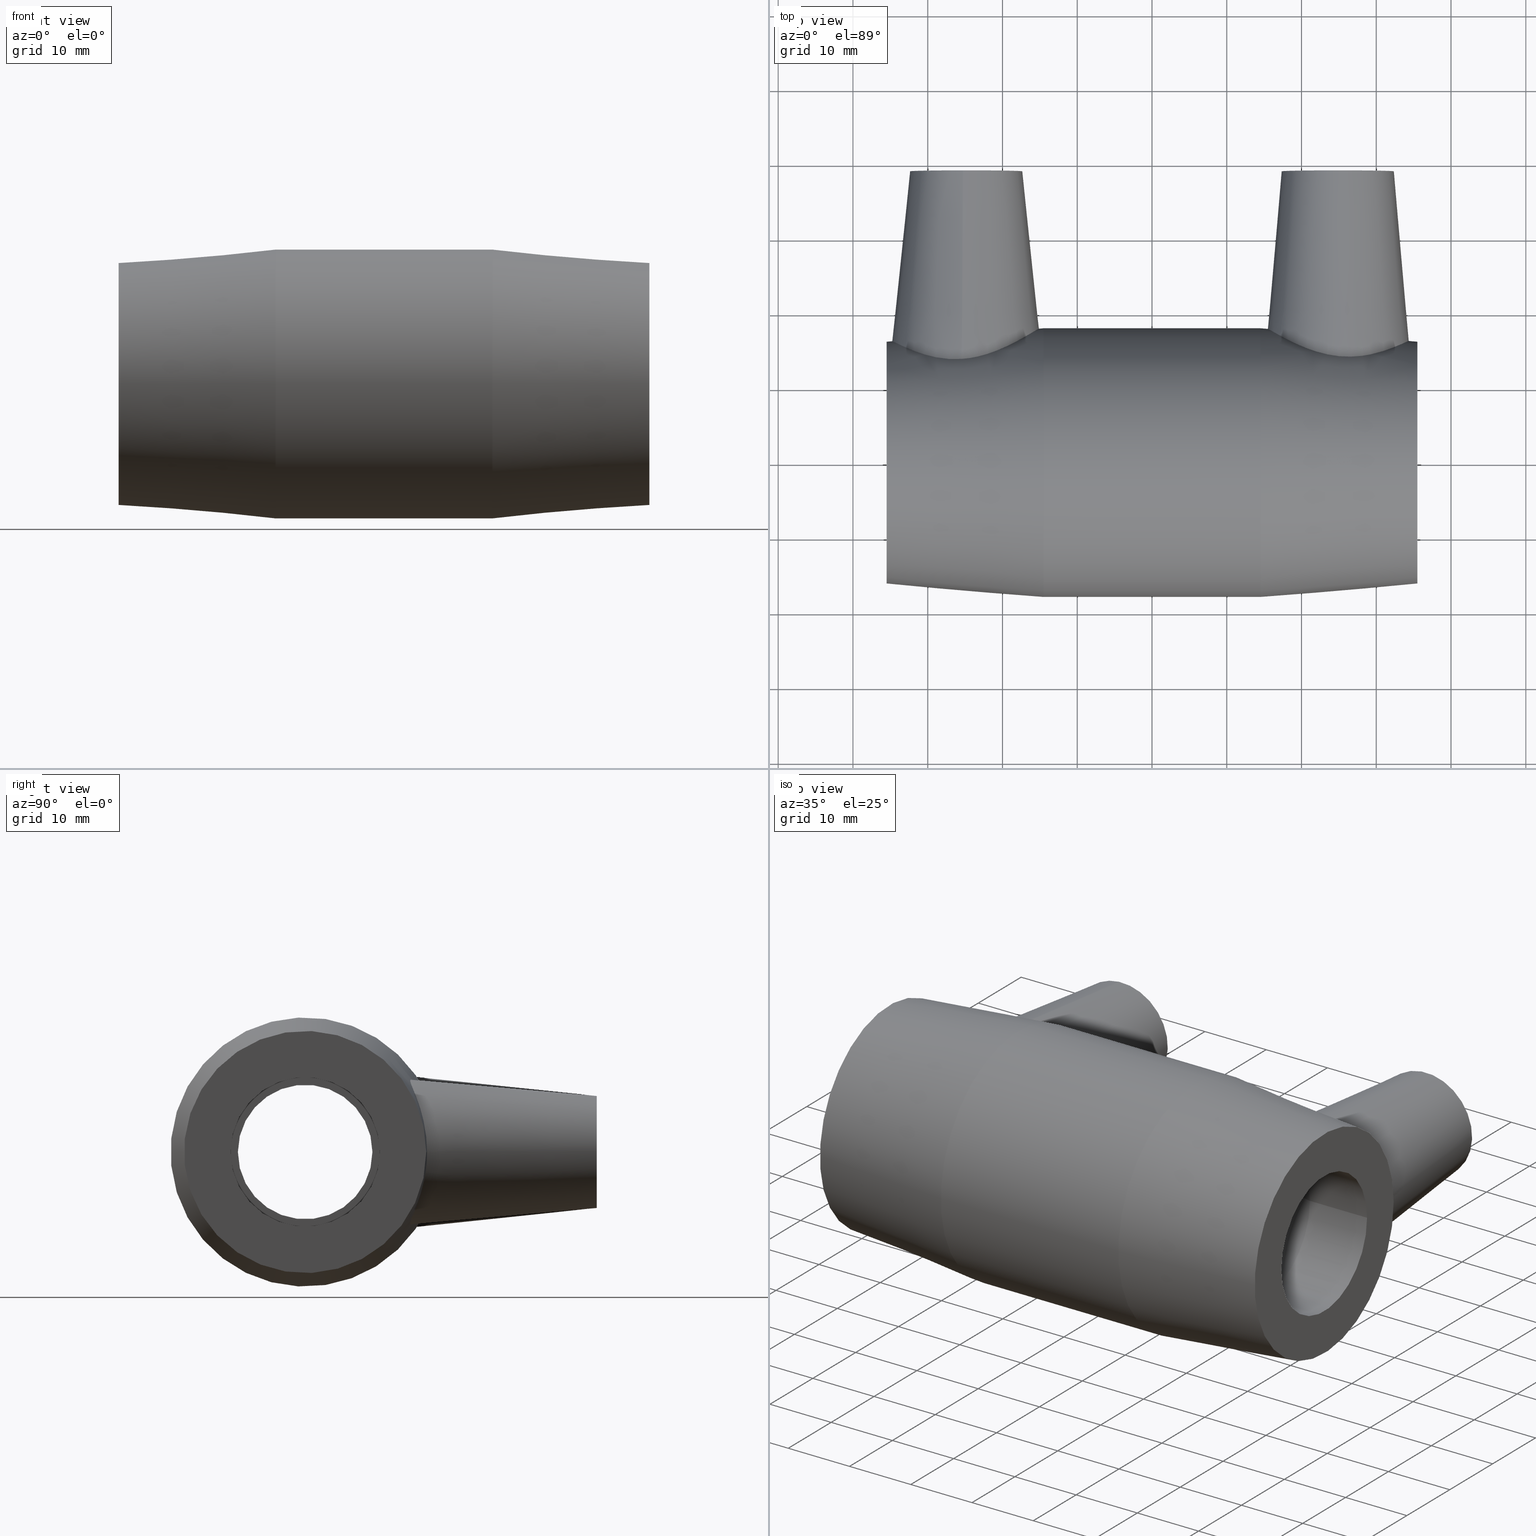
[diagram: canonical four-view strip — front | top / right | iso, engineering-drawing reading convention]
A machine part, canonical four-view strip (front | top / right | iso — engineering-drawing reading convention). The complete STEP part file that produces these views, byte-faithful:
ISO-10303-21;
HEADER;
/* Generated by software containing ST-Developer
 * from STEP Tools, Inc. (www.steptools.com) 
 */

FILE_DESCRIPTION(
/* description */ ('PLASSON REDUCING COUPLER 25-20'),
/* implementation_level */ '2;1');

FILE_NAME(
/* name */ 
'C:\\Dropbox\\KIMPROJECTS-Inventor\\99-16-3568-Processing\\ElectroFusi
on Fittings\\491104\\491104025020.ipt.stp',
/* time_stamp */ '2017-11-06T09:12:26+02:00',
/* author */ ('KIM'),
/* organization */ (''),
/* preprocessor_version */ 'ST-DEVELOPER v15.6',
/* originating_system */ 'Autodesk Inventor 2015',
/* authorisation */ '');

FILE_SCHEMA (('AUTOMOTIVE_DESIGN { 1 0 10303 214 3 1 1 }'));
ENDSEC;

DATA;
#10=MECHANICAL_DESIGN_GEOMETRIC_PRESENTATION_REPRESENTATION('',(#13),#651);
#11=SHAPE_REPRESENTATION_RELATIONSHIP('SRR','None',#660,#12);
#12=ADVANCED_BREP_SHAPE_REPRESENTATION($,(#14),#650);
#13=STYLED_ITEM('',(#669),#14);
#14=MANIFOLD_SOLID_BREP('Solid1',#323);
#15=B_SPLINE_CURVE_WITH_KNOTS('',3,(#510,#511,#512,#513,#514,#515,#516,
#517,#518,#519,#520,#521,#522,#523,#524,#525,#526,#527,#528,#529,#530,#531,
#532,#533,#534,#535,#536,#537,#538,#539,#540,#541,#542,#543,#544,#545,#546,
#547),.UNSPECIFIED.,.T.,.F.,(4,2,2,2,2,2,2,2,2,2,2,2,2,2,2,2,2,2,4),(0.,
0.176861838279988,0.353723676559975,0.70744735311995,1.0635954870431,1.41974362096625,
1.7758917548894,2.13203988881255,2.48576356537253,2.66262540365251,2.8394872419325,
3.23294618645652,3.62640513098054,4.00458566111133,4.38276619124212,4.7609467213729,
5.13912725150369,5.53258619602771,5.92604514055173),.UNSPECIFIED.);
#16=B_SPLINE_CURVE_WITH_KNOTS('',3,(#562,#563,#564,#565,#566,#567,#568,
#569,#570,#571,#572,#573,#574,#575,#576,#577,#578,#579,#580,#581,#582,#583,
#584,#585,#586,#587,#588,#589,#590,#591,#592,#593,#594,#595,#596,#597,#598,
#599),.UNSPECIFIED.,.T.,.F.,(4,2,2,2,2,2,2,2,2,2,2,2,2,2,2,2,2,2,4),(0.,
0.185299201020155,0.370598402040309,0.741196804080619,1.11369570266722,
1.48619460125382,1.85869349984042,2.23119239842702,2.60179080046733,2.78709000148748,
2.97238920250763,3.3877355594393,3.80308191637097,4.19848920143802,4.59389648650506,
4.98930377157211,5.38471105663916,5.80005741357083,6.2154037705025),
 .UNSPECIFIED.);
#17=CONICAL_SURFACE('',#337,7.5,5.);
#18=CONICAL_SURFACE('',#346,7.5,6.);
#19=CONICAL_SURFACE('',#350,17.1,4.89909245378776);
#20=CONICAL_SURFACE('',#356,10.4959653105634,12.);
#21=CONICAL_SURFACE('',#372,10.4959653105634,12.);
#22=CONICAL_SURFACE('',#378,17.1,4.89909245378775);
#23=FACE_BOUND('',#92,.T.);
#24=FACE_BOUND('',#94,.T.);
#25=FACE_BOUND('',#96,.T.);
#26=FACE_BOUND('',#98,.T.);
#27=FACE_BOUND('',#100,.T.);
#28=FACE_BOUND('',#102,.T.);
#29=FACE_BOUND('',#104,.T.);
#30=FACE_BOUND('',#106,.T.);
#31=FACE_BOUND('',#108,.T.);
#32=FACE_BOUND('',#110,.T.);
#33=FACE_BOUND('',#112,.T.);
#34=FACE_BOUND('',#114,.T.);
#35=FACE_BOUND('',#115,.T.);
#36=FACE_BOUND('',#117,.T.);
#37=FACE_BOUND('',#119,.T.);
#38=FACE_BOUND('',#121,.T.);
#39=FACE_BOUND('',#123,.T.);
#40=FACE_BOUND('',#125,.T.);
#41=FACE_BOUND('',#127,.T.);
#42=FACE_BOUND('',#129,.T.);
#43=FACE_BOUND('',#131,.T.);
#44=FACE_BOUND('',#133,.T.);
#45=FACE_BOUND('',#135,.T.);
#46=FACE_BOUND('',#137,.T.);
#47=FACE_BOUND('',#139,.T.);
#48=FACE_BOUND('',#141,.T.);
#49=FACE_BOUND('',#143,.T.);
#50=FACE_BOUND('',#144,.T.);
#51=CYLINDRICAL_SURFACE('',#329,2.);
#52=CYLINDRICAL_SURFACE('',#331,5.);
#53=CYLINDRICAL_SURFACE('',#338,2.);
#54=CYLINDRICAL_SURFACE('',#340,5.);
#55=CYLINDRICAL_SURFACE('',#347,18.);
#56=CYLINDRICAL_SURFACE('',#354,9.99999999999999);
#57=CYLINDRICAL_SURFACE('',#360,9.99999999999999);
#58=CYLINDRICAL_SURFACE('',#364,8.99999999999999);
#59=CYLINDRICAL_SURFACE('',#368,10.);
#60=CYLINDRICAL_SURFACE('',#374,10.);
#61=FACE_OUTER_BOUND('',#89,.T.);
#62=FACE_OUTER_BOUND('',#90,.T.);
#63=FACE_OUTER_BOUND('',#91,.T.);
#64=FACE_OUTER_BOUND('',#93,.T.);
#65=FACE_OUTER_BOUND('',#95,.T.);
#66=FACE_OUTER_BOUND('',#97,.T.);
#67=FACE_OUTER_BOUND('',#99,.T.);
#68=FACE_OUTER_BOUND('',#101,.T.);
#69=FACE_OUTER_BOUND('',#103,.T.);
#70=FACE_OUTER_BOUND('',#105,.T.);
#71=FACE_OUTER_BOUND('',#107,.T.);
#72=FACE_OUTER_BOUND('',#109,.T.);
#73=FACE_OUTER_BOUND('',#111,.T.);
#74=FACE_OUTER_BOUND('',#113,.T.);
#75=FACE_OUTER_BOUND('',#116,.T.);
#76=FACE_OUTER_BOUND('',#118,.T.);
#77=FACE_OUTER_BOUND('',#120,.T.);
#78=FACE_OUTER_BOUND('',#122,.T.);
#79=FACE_OUTER_BOUND('',#124,.T.);
#80=FACE_OUTER_BOUND('',#126,.T.);
#81=FACE_OUTER_BOUND('',#128,.T.);
#82=FACE_OUTER_BOUND('',#130,.T.);
#83=FACE_OUTER_BOUND('',#132,.T.);
#84=FACE_OUTER_BOUND('',#134,.T.);
#85=FACE_OUTER_BOUND('',#136,.T.);
#86=FACE_OUTER_BOUND('',#138,.T.);
#87=FACE_OUTER_BOUND('',#140,.T.);
#88=FACE_OUTER_BOUND('',#142,.T.);
#89=EDGE_LOOP('',(#227));
#90=EDGE_LOOP('',(#228));
#91=EDGE_LOOP('',(#229));
#92=EDGE_LOOP('',(#230));
#93=EDGE_LOOP('',(#231));
#94=EDGE_LOOP('',(#232));
#95=EDGE_LOOP('',(#233));
#96=EDGE_LOOP('',(#234));
#97=EDGE_LOOP('',(#235));
#98=EDGE_LOOP('',(#236));
#99=EDGE_LOOP('',(#237));
#100=EDGE_LOOP('',(#238));
#101=EDGE_LOOP('',(#239));
#102=EDGE_LOOP('',(#240));
#103=EDGE_LOOP('',(#241));
#104=EDGE_LOOP('',(#242));
#105=EDGE_LOOP('',(#243));
#106=EDGE_LOOP('',(#244));
#107=EDGE_LOOP('',(#245));
#108=EDGE_LOOP('',(#246));
#109=EDGE_LOOP('',(#247));
#110=EDGE_LOOP('',(#248));
#111=EDGE_LOOP('',(#249));
#112=EDGE_LOOP('',(#250));
#113=EDGE_LOOP('',(#251));
#114=EDGE_LOOP('',(#252));
#115=EDGE_LOOP('',(#253));
#116=EDGE_LOOP('',(#254));
#117=EDGE_LOOP('',(#255));
#118=EDGE_LOOP('',(#256));
#119=EDGE_LOOP('',(#257));
#120=EDGE_LOOP('',(#258));
#121=EDGE_LOOP('',(#259));
#122=EDGE_LOOP('',(#260));
#123=EDGE_LOOP('',(#261));
#124=EDGE_LOOP('',(#262));
#125=EDGE_LOOP('',(#263));
#126=EDGE_LOOP('',(#264));
#127=EDGE_LOOP('',(#265));
#128=EDGE_LOOP('',(#266));
#129=EDGE_LOOP('',(#267));
#130=EDGE_LOOP('',(#268));
#131=EDGE_LOOP('',(#269));
#132=EDGE_LOOP('',(#270));
#133=EDGE_LOOP('',(#271));
#134=EDGE_LOOP('',(#272));
#135=EDGE_LOOP('',(#273));
#136=EDGE_LOOP('',(#274));
#137=EDGE_LOOP('',(#275));
#138=EDGE_LOOP('',(#276));
#139=EDGE_LOOP('',(#277));
#140=EDGE_LOOP('',(#278));
#141=EDGE_LOOP('',(#279));
#142=EDGE_LOOP('',(#280));
#143=EDGE_LOOP('',(#281));
#144=EDGE_LOOP('',(#282));
#145=CIRCLE('',#326,2.);
#146=CIRCLE('',#328,2.);
#147=CIRCLE('',#330,2.);
#148=CIRCLE('',#332,5.);
#149=CIRCLE('',#333,5.);
#150=CIRCLE('',#336,7.5);
#151=CIRCLE('',#339,2.);
#152=CIRCLE('',#341,5.);
#153=CIRCLE('',#342,5.);
#154=CIRCLE('',#345,7.5);
#155=CIRCLE('',#348,18.);
#156=CIRCLE('',#349,18.);
#157=CIRCLE('',#351,16.2);
#158=CIRCLE('',#353,9.99999999999999);
#159=CIRCLE('',#355,9.99999999999999);
#160=CIRCLE('',#357,10.9919306211268);
#161=CIRCLE('',#359,9.99999999999999);
#162=CIRCLE('',#361,9.99999999999999);
#163=CIRCLE('',#363,8.99999999999999);
#164=CIRCLE('',#365,8.99999999999999);
#165=CIRCLE('',#367,9.99999999999999);
#166=CIRCLE('',#369,10.);
#167=CIRCLE('',#371,10.9919306211268);
#168=CIRCLE('',#373,10.);
#169=CIRCLE('',#375,10.);
#170=CIRCLE('',#377,16.2);
#171=VERTEX_POINT('',#491);
#172=VERTEX_POINT('',#494);
#173=VERTEX_POINT('',#497);
#174=VERTEX_POINT('',#500);
#175=VERTEX_POINT('',#502);
#176=VERTEX_POINT('',#506);
#177=VERTEX_POINT('',#509);
#178=VERTEX_POINT('',#549);
#179=VERTEX_POINT('',#552);
#180=VERTEX_POINT('',#554);
#181=VERTEX_POINT('',#558);
#182=VERTEX_POINT('',#561);
#183=VERTEX_POINT('',#601);
#184=VERTEX_POINT('',#603);
#185=VERTEX_POINT('',#606);
#186=VERTEX_POINT('',#609);
#187=VERTEX_POINT('',#612);
#188=VERTEX_POINT('',#615);
#189=VERTEX_POINT('',#618);
#190=VERTEX_POINT('',#621);
#191=VERTEX_POINT('',#624);
#192=VERTEX_POINT('',#627);
#193=VERTEX_POINT('',#630);
#194=VERTEX_POINT('',#633);
#195=VERTEX_POINT('',#636);
#196=VERTEX_POINT('',#639);
#197=VERTEX_POINT('',#642);
#198=VERTEX_POINT('',#645);
#199=EDGE_CURVE('',#171,#171,#145,.T.);
#200=EDGE_CURVE('',#172,#172,#146,.T.);
#201=EDGE_CURVE('',#173,#173,#147,.T.);
#202=EDGE_CURVE('',#174,#174,#148,.T.);
#203=EDGE_CURVE('',#175,#175,#149,.T.);
#204=EDGE_CURVE('',#176,#176,#150,.T.);
#205=EDGE_CURVE('',#177,#177,#15,.T.);
#206=EDGE_CURVE('',#178,#178,#151,.T.);
#207=EDGE_CURVE('',#179,#179,#152,.T.);
#208=EDGE_CURVE('',#180,#180,#153,.T.);
#209=EDGE_CURVE('',#181,#181,#154,.T.);
#210=EDGE_CURVE('',#182,#182,#16,.T.);
#211=EDGE_CURVE('',#183,#183,#155,.T.);
#212=EDGE_CURVE('',#184,#184,#156,.T.);
#213=EDGE_CURVE('',#185,#185,#157,.T.);
#214=EDGE_CURVE('',#186,#186,#158,.T.);
#215=EDGE_CURVE('',#187,#187,#159,.T.);
#216=EDGE_CURVE('',#188,#188,#160,.T.);
#217=EDGE_CURVE('',#189,#189,#161,.T.);
#218=EDGE_CURVE('',#190,#190,#162,.T.);
#219=EDGE_CURVE('',#191,#191,#163,.T.);
#220=EDGE_CURVE('',#192,#192,#164,.T.);
#221=EDGE_CURVE('',#193,#193,#165,.T.);
#222=EDGE_CURVE('',#194,#194,#166,.T.);
#223=EDGE_CURVE('',#195,#195,#167,.T.);
#224=EDGE_CURVE('',#196,#196,#168,.T.);
#225=EDGE_CURVE('',#197,#197,#169,.T.);
#226=EDGE_CURVE('',#198,#198,#170,.T.);
#227=ORIENTED_EDGE('',*,*,#199,.F.);
#228=ORIENTED_EDGE('',*,*,#200,.F.);
#229=ORIENTED_EDGE('',*,*,#199,.T.);
#230=ORIENTED_EDGE('',*,*,#201,.T.);
#231=ORIENTED_EDGE('',*,*,#202,.T.);
#232=ORIENTED_EDGE('',*,*,#203,.F.);
#233=ORIENTED_EDGE('',*,*,#202,.F.);
#234=ORIENTED_EDGE('',*,*,#201,.F.);
#235=ORIENTED_EDGE('',*,*,#204,.F.);
#236=ORIENTED_EDGE('',*,*,#203,.T.);
#237=ORIENTED_EDGE('',*,*,#204,.T.);
#238=ORIENTED_EDGE('',*,*,#205,.F.);
#239=ORIENTED_EDGE('',*,*,#200,.T.);
#240=ORIENTED_EDGE('',*,*,#206,.T.);
#241=ORIENTED_EDGE('',*,*,#207,.T.);
#242=ORIENTED_EDGE('',*,*,#208,.F.);
#243=ORIENTED_EDGE('',*,*,#207,.F.);
#244=ORIENTED_EDGE('',*,*,#206,.F.);
#245=ORIENTED_EDGE('',*,*,#209,.F.);
#246=ORIENTED_EDGE('',*,*,#208,.T.);
#247=ORIENTED_EDGE('',*,*,#209,.T.);
#248=ORIENTED_EDGE('',*,*,#210,.F.);
#249=ORIENTED_EDGE('',*,*,#211,.T.);
#250=ORIENTED_EDGE('',*,*,#212,.F.);
#251=ORIENTED_EDGE('',*,*,#213,.F.);
#252=ORIENTED_EDGE('',*,*,#205,.T.);
#253=ORIENTED_EDGE('',*,*,#212,.T.);
#254=ORIENTED_EDGE('',*,*,#213,.T.);
#255=ORIENTED_EDGE('',*,*,#214,.F.);
#256=ORIENTED_EDGE('',*,*,#215,.F.);
#257=ORIENTED_EDGE('',*,*,#214,.T.);
#258=ORIENTED_EDGE('',*,*,#216,.F.);
#259=ORIENTED_EDGE('',*,*,#215,.T.);
#260=ORIENTED_EDGE('',*,*,#216,.T.);
#261=ORIENTED_EDGE('',*,*,#217,.F.);
#262=ORIENTED_EDGE('',*,*,#217,.T.);
#263=ORIENTED_EDGE('',*,*,#218,.F.);
#264=ORIENTED_EDGE('',*,*,#218,.T.);
#265=ORIENTED_EDGE('',*,*,#219,.F.);
#266=ORIENTED_EDGE('',*,*,#220,.F.);
#267=ORIENTED_EDGE('',*,*,#219,.T.);
#268=ORIENTED_EDGE('',*,*,#221,.F.);
#269=ORIENTED_EDGE('',*,*,#220,.T.);
#270=ORIENTED_EDGE('',*,*,#222,.F.);
#271=ORIENTED_EDGE('',*,*,#221,.T.);
#272=ORIENTED_EDGE('',*,*,#223,.F.);
#273=ORIENTED_EDGE('',*,*,#222,.T.);
#274=ORIENTED_EDGE('',*,*,#224,.F.);
#275=ORIENTED_EDGE('',*,*,#223,.T.);
#276=ORIENTED_EDGE('',*,*,#225,.F.);
#277=ORIENTED_EDGE('',*,*,#224,.T.);
#278=ORIENTED_EDGE('',*,*,#226,.F.);
#279=ORIENTED_EDGE('',*,*,#225,.T.);
#280=ORIENTED_EDGE('',*,*,#211,.F.);
#281=ORIENTED_EDGE('',*,*,#210,.T.);
#282=ORIENTED_EDGE('',*,*,#226,.T.);
#283=PLANE('',#325);
#284=PLANE('',#327);
#285=PLANE('',#334);
#286=PLANE('',#335);
#287=PLANE('',#343);
#288=PLANE('',#344);
#289=PLANE('',#352);
#290=PLANE('',#358);
#291=PLANE('',#362);
#292=PLANE('',#366);
#293=PLANE('',#370);
#294=PLANE('',#376);
#295=ADVANCED_FACE('',(#61),#283,.T.);
#296=ADVANCED_FACE('',(#62),#284,.T.);
#297=ADVANCED_FACE('',(#63,#23),#51,.T.);
#298=ADVANCED_FACE('',(#64,#24),#52,.F.);
#299=ADVANCED_FACE('',(#65,#25),#285,.T.);
#300=ADVANCED_FACE('',(#66,#26),#286,.T.);
#301=ADVANCED_FACE('',(#67,#27),#17,.T.);
#302=ADVANCED_FACE('',(#68,#28),#53,.T.);
#303=ADVANCED_FACE('',(#69,#29),#54,.F.);
#304=ADVANCED_FACE('',(#70,#30),#287,.T.);
#305=ADVANCED_FACE('',(#71,#31),#288,.T.);
#306=ADVANCED_FACE('',(#72,#32),#18,.T.);
#307=ADVANCED_FACE('',(#73,#33),#55,.T.);
#308=ADVANCED_FACE('',(#74,#34,#35),#19,.T.);
#309=ADVANCED_FACE('',(#75,#36),#289,.T.);
#310=ADVANCED_FACE('',(#76,#37),#56,.F.);
#311=ADVANCED_FACE('',(#77,#38),#20,.F.);
#312=ADVANCED_FACE('',(#78,#39),#290,.T.);
#313=ADVANCED_FACE('',(#79,#40),#57,.F.);
#314=ADVANCED_FACE('',(#80,#41),#291,.T.);
#315=ADVANCED_FACE('',(#81,#42),#58,.F.);
#316=ADVANCED_FACE('',(#82,#43),#292,.T.);
#317=ADVANCED_FACE('',(#83,#44),#59,.F.);
#318=ADVANCED_FACE('',(#84,#45),#293,.T.);
#319=ADVANCED_FACE('',(#85,#46),#21,.F.);
#320=ADVANCED_FACE('',(#86,#47),#60,.F.);
#321=ADVANCED_FACE('',(#87,#48),#294,.T.);
#322=ADVANCED_FACE('',(#88,#49,#50),#22,.T.);
#323=CLOSED_SHELL('',(#295,#296,#297,#298,#299,#300,#301,#302,#303,#304,
#305,#306,#307,#308,#309,#310,#311,#312,#313,#314,#315,#316,#317,#318,#319,
#320,#321,#322));
#324=AXIS2_PLACEMENT_3D('placement',#489,#379,#380);
#325=AXIS2_PLACEMENT_3D('',#490,#381,#382);
#326=AXIS2_PLACEMENT_3D('',#492,#383,#384);
#327=AXIS2_PLACEMENT_3D('',#493,#385,#386);
#328=AXIS2_PLACEMENT_3D('',#495,#387,#388);
#329=AXIS2_PLACEMENT_3D('',#496,#389,#390);
#330=AXIS2_PLACEMENT_3D('',#498,#391,#392);
#331=AXIS2_PLACEMENT_3D('',#499,#393,#394);
#332=AXIS2_PLACEMENT_3D('',#501,#395,#396);
#333=AXIS2_PLACEMENT_3D('',#503,#397,#398);
#334=AXIS2_PLACEMENT_3D('',#504,#399,#400);
#335=AXIS2_PLACEMENT_3D('',#505,#401,#402);
#336=AXIS2_PLACEMENT_3D('',#507,#403,#404);
#337=AXIS2_PLACEMENT_3D('',#508,#405,#406);
#338=AXIS2_PLACEMENT_3D('',#548,#407,#408);
#339=AXIS2_PLACEMENT_3D('',#550,#409,#410);
#340=AXIS2_PLACEMENT_3D('',#551,#411,#412);
#341=AXIS2_PLACEMENT_3D('',#553,#413,#414);
#342=AXIS2_PLACEMENT_3D('',#555,#415,#416);
#343=AXIS2_PLACEMENT_3D('',#556,#417,#418);
#344=AXIS2_PLACEMENT_3D('',#557,#419,#420);
#345=AXIS2_PLACEMENT_3D('',#559,#421,#422);
#346=AXIS2_PLACEMENT_3D('',#560,#423,#424);
#347=AXIS2_PLACEMENT_3D('',#600,#425,#426);
#348=AXIS2_PLACEMENT_3D('',#602,#427,#428);
#349=AXIS2_PLACEMENT_3D('',#604,#429,#430);
#350=AXIS2_PLACEMENT_3D('',#605,#431,#432);
#351=AXIS2_PLACEMENT_3D('',#607,#433,#434);
#352=AXIS2_PLACEMENT_3D('',#608,#435,#436);
#353=AXIS2_PLACEMENT_3D('',#610,#437,#438);
#354=AXIS2_PLACEMENT_3D('',#611,#439,#440);
#355=AXIS2_PLACEMENT_3D('',#613,#441,#442);
#356=AXIS2_PLACEMENT_3D('',#614,#443,#444);
#357=AXIS2_PLACEMENT_3D('',#616,#445,#446);
#358=AXIS2_PLACEMENT_3D('',#617,#447,#448);
#359=AXIS2_PLACEMENT_3D('',#619,#449,#450);
#360=AXIS2_PLACEMENT_3D('',#620,#451,#452);
#361=AXIS2_PLACEMENT_3D('',#622,#453,#454);
#362=AXIS2_PLACEMENT_3D('',#623,#455,#456);
#363=AXIS2_PLACEMENT_3D('',#625,#457,#458);
#364=AXIS2_PLACEMENT_3D('',#626,#459,#460);
#365=AXIS2_PLACEMENT_3D('',#628,#461,#462);
#366=AXIS2_PLACEMENT_3D('',#629,#463,#464);
#367=AXIS2_PLACEMENT_3D('',#631,#465,#466);
#368=AXIS2_PLACEMENT_3D('',#632,#467,#468);
#369=AXIS2_PLACEMENT_3D('',#634,#469,#470);
#370=AXIS2_PLACEMENT_3D('',#635,#471,#472);
#371=AXIS2_PLACEMENT_3D('',#637,#473,#474);
#372=AXIS2_PLACEMENT_3D('',#638,#475,#476);
#373=AXIS2_PLACEMENT_3D('',#640,#477,#478);
#374=AXIS2_PLACEMENT_3D('',#641,#479,#480);
#375=AXIS2_PLACEMENT_3D('',#643,#481,#482);
#376=AXIS2_PLACEMENT_3D('',#644,#483,#484);
#377=AXIS2_PLACEMENT_3D('',#646,#485,#486);
#378=AXIS2_PLACEMENT_3D('',#647,#487,#488);
#379=DIRECTION('axis',(0.,0.,1.));
#380=DIRECTION('refdir',(1.,0.,0.));
#381=DIRECTION('center_axis',(0.,1.,0.));
#382=DIRECTION('ref_axis',(0.,0.,1.));
#383=DIRECTION('center_axis',(0.,-1.,0.));
#384=DIRECTION('ref_axis',(1.,0.,0.));
#385=DIRECTION('center_axis',(0.,1.,0.));
#386=DIRECTION('ref_axis',(0.,0.,1.));
#387=DIRECTION('center_axis',(0.,-1.,0.));
#388=DIRECTION('ref_axis',(-1.,0.,0.));
#389=DIRECTION('center_axis',(0.,-1.,0.));
#390=DIRECTION('ref_axis',(1.,0.,0.));
#391=DIRECTION('center_axis',(0.,1.,0.));
#392=DIRECTION('ref_axis',(1.,0.,0.));
#393=DIRECTION('center_axis',(0.,-1.,0.));
#394=DIRECTION('ref_axis',(1.,0.,0.));
#395=DIRECTION('center_axis',(0.,-1.,0.));
#396=DIRECTION('ref_axis',(1.,0.,0.));
#397=DIRECTION('center_axis',(0.,-1.,0.));
#398=DIRECTION('ref_axis',(1.,0.,0.));
#399=DIRECTION('center_axis',(0.,1.,0.));
#400=DIRECTION('ref_axis',(0.,0.,1.));
#401=DIRECTION('center_axis',(0.,1.,0.));
#402=DIRECTION('ref_axis',(0.,0.,1.));
#403=DIRECTION('center_axis',(0.,-1.,0.));
#404=DIRECTION('ref_axis',(1.,0.,0.));
#405=DIRECTION('center_axis',(0.,-1.,0.));
#406=DIRECTION('ref_axis',(1.,0.,0.));
#407=DIRECTION('center_axis',(0.,-1.,0.));
#408=DIRECTION('ref_axis',(-1.,0.,0.));
#409=DIRECTION('center_axis',(0.,1.,0.));
#410=DIRECTION('ref_axis',(-1.,0.,0.));
#411=DIRECTION('center_axis',(0.,-1.,0.));
#412=DIRECTION('ref_axis',(-1.,0.,0.));
#413=DIRECTION('center_axis',(0.,-1.,0.));
#414=DIRECTION('ref_axis',(-1.,0.,0.));
#415=DIRECTION('center_axis',(0.,-1.,0.));
#416=DIRECTION('ref_axis',(-1.,0.,0.));
#417=DIRECTION('center_axis',(0.,1.,0.));
#418=DIRECTION('ref_axis',(0.,0.,1.));
#419=DIRECTION('center_axis',(0.,1.,0.));
#420=DIRECTION('ref_axis',(0.,0.,1.));
#421=DIRECTION('center_axis',(0.,-1.,0.));
#422=DIRECTION('ref_axis',(1.,0.,0.));
#423=DIRECTION('center_axis',(0.,-1.,0.));
#424=DIRECTION('ref_axis',(1.,0.,0.));
#425=DIRECTION('center_axis',(1.,1.83697019872103E-16,0.));
#426=DIRECTION('ref_axis',(-1.96131485542617E-16,1.,0.));
#427=DIRECTION('center_axis',(1.,1.83697019872103E-16,0.));
#428=DIRECTION('ref_axis',(0.,0.,-1.));
#429=DIRECTION('center_axis',(1.,1.83697019872103E-16,0.));
#430=DIRECTION('ref_axis',(0.,0.,-1.));
#431=DIRECTION('center_axis',(-1.,-1.83697019872103E-16,0.));
#432=DIRECTION('ref_axis',(-1.96131485542618E-16,1.,0.));
#433=DIRECTION('center_axis',(1.,1.83697019872103E-16,0.));
#434=DIRECTION('ref_axis',(0.,0.,-1.));
#435=DIRECTION('center_axis',(1.,1.83697019872103E-16,0.));
#436=DIRECTION('ref_axis',(0.,0.,-1.));
#437=DIRECTION('center_axis',(1.,1.83697019872103E-16,0.));
#438=DIRECTION('ref_axis',(0.,0.,-1.));
#439=DIRECTION('center_axis',(1.,1.83697019872103E-16,0.));
#440=DIRECTION('ref_axis',(-1.96131485542617E-16,1.,0.));
#441=DIRECTION('center_axis',(1.,1.83697019872103E-16,0.));
#442=DIRECTION('ref_axis',(0.,0.,-1.));
#443=DIRECTION('center_axis',(-1.,-1.83697019872103E-16,0.));
#444=DIRECTION('ref_axis',(-1.96131485542618E-16,1.,0.));
#445=DIRECTION('center_axis',(1.,1.83697019872103E-16,0.));
#446=DIRECTION('ref_axis',(0.,0.,-1.));
#447=DIRECTION('center_axis',(1.,1.83697019872103E-16,0.));
#448=DIRECTION('ref_axis',(0.,0.,-1.));
#449=DIRECTION('center_axis',(1.,1.83697019872103E-16,0.));
#450=DIRECTION('ref_axis',(0.,0.,-1.));
#451=DIRECTION('center_axis',(1.,1.83697019872103E-16,0.));
#452=DIRECTION('ref_axis',(-1.96131485542618E-16,1.,0.));
#453=DIRECTION('center_axis',(1.,1.83697019872103E-16,0.));
#454=DIRECTION('ref_axis',(0.,0.,-1.));
#455=DIRECTION('center_axis',(1.,1.83697019872103E-16,0.));
#456=DIRECTION('ref_axis',(0.,0.,-1.));
#457=DIRECTION('center_axis',(1.,1.83697019872103E-16,0.));
#458=DIRECTION('ref_axis',(0.,0.,-1.));
#459=DIRECTION('center_axis',(1.,1.83697019872103E-16,0.));
#460=DIRECTION('ref_axis',(-1.96131485542618E-16,1.,0.));
#461=DIRECTION('center_axis',(1.,1.83697019872103E-16,0.));
#462=DIRECTION('ref_axis',(0.,0.,-1.));
#463=DIRECTION('center_axis',(-1.,-1.83697019872103E-16,0.));
#464=DIRECTION('ref_axis',(0.,0.,1.));
#465=DIRECTION('center_axis',(1.,1.83697019872103E-16,0.));
#466=DIRECTION('ref_axis',(0.,0.,-1.));
#467=DIRECTION('center_axis',(1.,1.83697019872103E-16,0.));
#468=DIRECTION('ref_axis',(-1.96131485542617E-16,1.,0.));
#469=DIRECTION('center_axis',(1.,1.83697019872103E-16,0.));
#470=DIRECTION('ref_axis',(0.,0.,-1.));
#471=DIRECTION('center_axis',(-1.,-1.83697019872103E-16,0.));
#472=DIRECTION('ref_axis',(0.,0.,1.));
#473=DIRECTION('center_axis',(1.,1.83697019872103E-16,0.));
#474=DIRECTION('ref_axis',(0.,0.,-1.));
#475=DIRECTION('center_axis',(1.,1.83697019872103E-16,0.));
#476=DIRECTION('ref_axis',(-1.96131485542617E-16,1.,0.));
#477=DIRECTION('center_axis',(1.,1.83697019872103E-16,0.));
#478=DIRECTION('ref_axis',(0.,0.,-1.));
#479=DIRECTION('center_axis',(1.,1.83697019872103E-16,0.));
#480=DIRECTION('ref_axis',(-1.96131485542617E-16,1.,0.));
#481=DIRECTION('center_axis',(1.,1.83697019872103E-16,0.));
#482=DIRECTION('ref_axis',(0.,0.,-1.));
#483=DIRECTION('center_axis',(-1.,-1.83697019872103E-16,0.));
#484=DIRECTION('ref_axis',(0.,0.,1.));
#485=DIRECTION('center_axis',(1.,1.83697019872103E-16,0.));
#486=DIRECTION('ref_axis',(0.,0.,-1.));
#487=DIRECTION('center_axis',(1.,1.83697019872103E-16,0.));
#488=DIRECTION('ref_axis',(-1.96131485542617E-16,1.,0.));
#489=CARTESIAN_POINT('',(0.,0.,0.));
#490=CARTESIAN_POINT('Origin',(24.85,36.,0.));
#491=CARTESIAN_POINT('',(26.85,36.,-2.44929359829471E-16));
#492=CARTESIAN_POINT('Origin',(24.85,36.,0.));
#493=CARTESIAN_POINT('Origin',(-24.85,36.,0.));
#494=CARTESIAN_POINT('',(-22.85,36.,-2.44929359829471E-16));
#495=CARTESIAN_POINT('Origin',(-24.85,36.,0.));
#496=CARTESIAN_POINT('Origin',(24.85,39.,0.));
#497=CARTESIAN_POINT('',(22.85,25.,2.44929359829471E-16));
#498=CARTESIAN_POINT('Origin',(24.85,25.,0.));
#499=CARTESIAN_POINT('Origin',(24.85,39.,0.));
#500=CARTESIAN_POINT('',(19.85,25.,6.12323399573677E-16));
#501=CARTESIAN_POINT('Origin',(24.85,25.,0.));
#502=CARTESIAN_POINT('',(19.85,39.,6.12323399573677E-16));
#503=CARTESIAN_POINT('Origin',(24.85,39.,0.));
#504=CARTESIAN_POINT('Origin',(24.85,25.,9.25185853854297E-17));
#505=CARTESIAN_POINT('Origin',(24.85,39.,1.2335811384724E-16));
#506=CARTESIAN_POINT('',(17.35,39.,9.18485099360515E-16));
#507=CARTESIAN_POINT('Origin',(24.85,39.,0.));
#508=CARTESIAN_POINT('Origin',(24.85,39.,0.));
#509=CARTESIAN_POINT('',(25.3791488612377,14.0658836952062,-9.66698113265337));
#510=CARTESIAN_POINT('Ctrl Pts',(25.3791488612377,14.0658836952062,-9.66698113265337));
#511=CARTESIAN_POINT('Ctrl Pts',(25.9665345276165,14.0243908107581,-9.63846455027638));
#512=CARTESIAN_POINT('Ctrl Pts',(26.5676703615202,14.0223990628618,-9.55122535415776));
#513=CARTESIAN_POINT('Ctrl Pts',(27.750847459526,14.099351256142,-9.25370281329846));
#514=CARTESIAN_POINT('Ctrl Pts',(28.3329318902849,14.1779871557753,-9.04351154775006));
#515=CARTESIAN_POINT('Ctrl Pts',(29.9909057347742,14.4985406661509,-8.25051453568167));
#516=CARTESIAN_POINT('Ctrl Pts',(30.9783944262316,14.8236244923794,-7.49635889800002));
#517=CARTESIAN_POINT('Ctrl Pts',(32.5302343559704,15.4196814906469,-5.8124356113657));
#518=CARTESIAN_POINT('Ctrl Pts',(33.2064724953891,15.7352665990725,-4.75743647178172));
#519=CARTESIAN_POINT('Ctrl Pts',(34.1099541619134,16.1776966269926,-2.44548553440506));
#520=CARTESIAN_POINT('Ctrl Pts',(34.3360127550981,16.2997703352773,-1.1871604464105));
#521=CARTESIAN_POINT('Ctrl Pts',(34.3360127550981,16.2997703352773,1.1871604464105));
#522=CARTESIAN_POINT('Ctrl Pts',(34.1099541619134,16.1776966269926,2.44548553440506));
#523=CARTESIAN_POINT('Ctrl Pts',(33.2064724953891,15.7352665990725,4.75743647178172));
#524=CARTESIAN_POINT('Ctrl Pts',(32.5302343559704,15.4196814906469,5.8124356113657));
#525=CARTESIAN_POINT('Ctrl Pts',(30.9783944262316,14.8236244923794,7.49635889800002));
#526=CARTESIAN_POINT('Ctrl Pts',(29.9909057347742,14.4985406661509,8.25051453568167));
#527=CARTESIAN_POINT('Ctrl Pts',(28.3329318902849,14.1779871557753,9.04351154775006));
#528=CARTESIAN_POINT('Ctrl Pts',(27.750847459526,14.099351256142,9.25370281329846));
#529=CARTESIAN_POINT('Ctrl Pts',(26.5676703615202,14.0223990628618,9.55122535415776));
#530=CARTESIAN_POINT('Ctrl Pts',(25.9665345276165,14.0243908107581,9.63846455027638));
#531=CARTESIAN_POINT('Ctrl Pts',(24.0724105248644,14.1581916044702,9.73042107262346));
#532=CARTESIAN_POINT('Ctrl Pts',(22.7252896866123,14.4657422312426,9.50078722870933));
#533=CARTESIAN_POINT('Ctrl Pts',(20.2881323069032,15.3047057631488,8.51810163156874));
#534=CARTESIAN_POINT('Ctrl Pts',(19.1933705083321,15.8223461033869,7.76506465266315));
#535=CARTESIAN_POINT('Ctrl Pts',(17.4936327345864,16.7070392213616,6.0492352719928));
#536=CARTESIAN_POINT('Ctrl Pts',(16.7563604967155,17.1415393348686,4.9763965889061));
#537=CARTESIAN_POINT('Ctrl Pts',(15.761302529362,17.7473805674012,2.58304602450949));
#538=CARTESIAN_POINT('Ctrl Pts',(15.5052000423883,17.9138399963667,1.26060176710262));
#539=CARTESIAN_POINT('Ctrl Pts',(15.5052000423883,17.9138399963667,-1.26060176710262));
#540=CARTESIAN_POINT('Ctrl Pts',(15.761302529362,17.7473805674012,-2.58304602450949));
#541=CARTESIAN_POINT('Ctrl Pts',(16.7563604967155,17.1415393348686,-4.9763965889061));
#542=CARTESIAN_POINT('Ctrl Pts',(17.4936327345864,16.7070392213616,-6.0492352719928));
#543=CARTESIAN_POINT('Ctrl Pts',(19.1933705083321,15.8223461033869,-7.76506465266314));
#544=CARTESIAN_POINT('Ctrl Pts',(20.2881323069032,15.3047057631488,-8.51810163156874));
#545=CARTESIAN_POINT('Ctrl Pts',(22.7252896866123,14.4657422312426,-9.50078722870933));
#546=CARTESIAN_POINT('Ctrl Pts',(24.0724105248644,14.1581916044702,-9.73042107262346));
#547=CARTESIAN_POINT('Ctrl Pts',(25.3791488612377,14.0658836952062,-9.66698113265337));
#548=CARTESIAN_POINT('Origin',(-24.85,39.,0.));
#549=CARTESIAN_POINT('',(-22.85,25.,-2.44929359829471E-16));
#550=CARTESIAN_POINT('Origin',(-24.85,25.,0.));
#551=CARTESIAN_POINT('Origin',(-24.85,39.,0.));
#552=CARTESIAN_POINT('',(-19.85,25.,-6.12323399573677E-16));
#553=CARTESIAN_POINT('Origin',(-24.85,25.,0.));
#554=CARTESIAN_POINT('',(-19.85,39.,-6.12323399573677E-16));
#555=CARTESIAN_POINT('Origin',(-24.85,39.,0.));
#556=CARTESIAN_POINT('Origin',(-24.85,25.,-9.25185853854297E-17));
#557=CARTESIAN_POINT('Origin',(-24.85,39.,1.2335811384724E-16));
#558=CARTESIAN_POINT('',(-32.35,39.,9.18485099360515E-16));
#559=CARTESIAN_POINT('Origin',(-24.85,39.,0.));
#560=CARTESIAN_POINT('Origin',(-24.85,39.,0.));
#561=CARTESIAN_POINT('',(-25.4400773461064,13.7225999164325,10.139606456612));
#562=CARTESIAN_POINT('Ctrl Pts',(-25.4400773461065,13.7225999164326,10.139606456612));
#563=CARTESIAN_POINT('Ctrl Pts',(-26.0554848061283,13.6801755537237,10.1082591649427));
#564=CARTESIAN_POINT('Ctrl Pts',(-26.6836558126022,13.6833117082209,10.0143419986184));
#565=CARTESIAN_POINT('Ctrl Pts',(-27.917326713401,13.7808855108945,9.69703784869612));
#566=CARTESIAN_POINT('Ctrl Pts',(-28.5228890839462,13.8749109819528,9.47376717065599));
#567=CARTESIAN_POINT('Ctrl Pts',(-30.2449859089782,14.2491836060499,8.63497623960071));
#568=CARTESIAN_POINT('Ctrl Pts',(-31.267289519206,14.6192269678355,7.84129932997885));
#569=CARTESIAN_POINT('Ctrl Pts',(-32.8714283514107,15.2890173803577,6.07675864335825));
#570=CARTESIAN_POINT('Ctrl Pts',(-33.5704214796696,15.6398730455991,4.97385128769273));
#571=CARTESIAN_POINT('Ctrl Pts',(-34.5051770921332,16.1304111960584,2.55707376897077));
#572=CARTESIAN_POINT('Ctrl Pts',(-34.7395254991271,16.2651835286462,1.24166299528867));
#573=CARTESIAN_POINT('Ctrl Pts',(-34.7395254991271,16.2651835286462,-1.24166299528866));
#574=CARTESIAN_POINT('Ctrl Pts',(-34.5051770921332,16.1304111960584,-2.55707376897077));
#575=CARTESIAN_POINT('Ctrl Pts',(-33.5704214796697,15.6398730455991,-4.97385128769272));
#576=CARTESIAN_POINT('Ctrl Pts',(-32.8714283514107,15.2890173803577,-6.07675864335825));
#577=CARTESIAN_POINT('Ctrl Pts',(-31.267289519206,14.6192269678355,-7.84129932997885));
#578=CARTESIAN_POINT('Ctrl Pts',(-30.2449859089782,14.2491836060499,-8.6349762396007));
#579=CARTESIAN_POINT('Ctrl Pts',(-28.5228890839462,13.8749109819528,-9.47376717065599));
#580=CARTESIAN_POINT('Ctrl Pts',(-27.917326713401,13.7808855108945,-9.69703784869612));
#581=CARTESIAN_POINT('Ctrl Pts',(-26.6836558126022,13.6833117082209,-10.0143419986184));
#582=CARTESIAN_POINT('Ctrl Pts',(-26.0554848061283,13.6801755537237,-10.1082591649427));
#583=CARTESIAN_POINT('Ctrl Pts',(-24.0606475097046,13.81769371284,-10.2098711060158));
#584=CARTESIAN_POINT('Ctrl Pts',(-22.6489616694074,14.1614685227023,-9.96355181723278));
#585=CARTESIAN_POINT('Ctrl Pts',(-20.1010772865265,15.0941052828797,-8.92144372205494));
#586=CARTESIAN_POINT('Ctrl Pts',(-18.959366888647,15.6672467928001,-8.12512863328076));
#587=CARTESIAN_POINT('Ctrl Pts',(-17.1958170252626,16.6363915937125,-6.32118237547666));
#588=CARTESIAN_POINT('Ctrl Pts',(-16.4332411469822,17.1081087825257,-5.20036181057903));
#589=CARTESIAN_POINT('Ctrl Pts',(-15.4029047925954,17.7651306421856,-2.69984050890149));
#590=CARTESIAN_POINT('Ctrl Pts',(-15.1370717220362,17.9453938523969,-1.31802428355683));
#591=CARTESIAN_POINT('Ctrl Pts',(-15.1370717220362,17.9453938523969,1.31802428355682));
#592=CARTESIAN_POINT('Ctrl Pts',(-15.4029047925954,17.7651306421856,2.69984050890149));
#593=CARTESIAN_POINT('Ctrl Pts',(-16.4332411469822,17.1081087825257,5.20036181057902));
#594=CARTESIAN_POINT('Ctrl Pts',(-17.1958170252626,16.6363915937125,6.32118237547666));
#595=CARTESIAN_POINT('Ctrl Pts',(-18.959366888647,15.6672467928001,8.12512863328075));
#596=CARTESIAN_POINT('Ctrl Pts',(-20.1010772865265,15.0941052828797,8.92144372205493));
#597=CARTESIAN_POINT('Ctrl Pts',(-22.6489616694074,14.1614685227023,9.96355181723278));
#598=CARTESIAN_POINT('Ctrl Pts',(-24.0606475097046,13.81769371284,10.2098711060158));
#599=CARTESIAN_POINT('Ctrl Pts',(-25.4400773461065,13.7225999164326,10.139606456612));
#600=CARTESIAN_POINT('Origin',(7.2275,7.84891441658528E-15,0.));
#601=CARTESIAN_POINT('',(-14.5,18.,0.));
#602=CARTESIAN_POINT('Origin',(-14.5,3.85763741731416E-15,0.));
#603=CARTESIAN_POINT('',(14.5,18.,0.));
#604=CARTESIAN_POINT('Origin',(14.5,9.18485099360515E-15,0.));
#605=CARTESIAN_POINT('Origin',(25.,1.11136697022622E-14,0.));
#606=CARTESIAN_POINT('',(35.5,16.2,0.));
#607=CARTESIAN_POINT('Origin',(35.5,1.30424884109193E-14,0.));
#608=CARTESIAN_POINT('Origin',(35.5,10.,0.));
#609=CARTESIAN_POINT('',(35.5,10.,0.));
#610=CARTESIAN_POINT('Origin',(35.5,1.30424884109193E-14,0.));
#611=CARTESIAN_POINT('Origin',(30.8333333333333,1.21852356515162E-14,0.));
#612=CARTESIAN_POINT('',(26.1666666666667,10.,0.));
#613=CARTESIAN_POINT('Origin',(26.1666666666667,1.1327982892113E-14,0.));
#614=CARTESIAN_POINT('Origin',(23.8333333333333,1.08993565124114E-14,0.));
#615=CARTESIAN_POINT('',(21.5,10.9919306211268,0.));
#616=CARTESIAN_POINT('Origin',(21.5,1.04707301327099E-14,0.));
#617=CARTESIAN_POINT('Origin',(21.5,10.,0.));
#618=CARTESIAN_POINT('',(21.5,10.,0.));
#619=CARTESIAN_POINT('Origin',(21.5,1.04707301327099E-14,0.));
#620=CARTESIAN_POINT('Origin',(0.454999999999997,6.60482634950146E-15,0.));
#621=CARTESIAN_POINT('',(0.409999999999997,10.,0.));
#622=CARTESIAN_POINT('Origin',(0.409999999999999,6.59655998360722E-15,0.));
#623=CARTESIAN_POINT('Origin',(0.409999999999997,9.,0.));
#624=CARTESIAN_POINT('',(0.409999999999997,9.,0.));
#625=CARTESIAN_POINT('Origin',(0.409999999999999,6.59655998360722E-15,0.));
#626=CARTESIAN_POINT('Origin',(-0.0450000000000017,6.51297783956541E-15,
0.));
#627=CARTESIAN_POINT('',(-0.500000000000003,9.,0.));
#628=CARTESIAN_POINT('Origin',(-0.500000000000003,6.4293956955236E-15,0.));
#629=CARTESIAN_POINT('Origin',(-0.500000000000003,10.,0.));
#630=CARTESIAN_POINT('',(-0.500000000000003,10.,0.));
#631=CARTESIAN_POINT('Origin',(-0.500000000000003,6.4293956955236E-15,0.));
#632=CARTESIAN_POINT('Origin',(-11.,4.50057698686652E-15,0.));
#633=CARTESIAN_POINT('',(-21.5,10.,0.));
#634=CARTESIAN_POINT('Origin',(-21.5,2.57175827820944E-15,0.));
#635=CARTESIAN_POINT('Origin',(-21.5,10.9919306211268,0.));
#636=CARTESIAN_POINT('',(-21.5,10.9919306211268,0.));
#637=CARTESIAN_POINT('Origin',(-21.5,2.57175827820944E-15,0.));
#638=CARTESIAN_POINT('Origin',(-23.8333333333333,2.14313189850787E-15,0.));
#639=CARTESIAN_POINT('',(-26.1666666666667,10.,0.));
#640=CARTESIAN_POINT('Origin',(-26.1666666666667,1.71450551880629E-15,0.));
#641=CARTESIAN_POINT('Origin',(-30.8333333333333,8.57252759403147E-16,0.));
#642=CARTESIAN_POINT('',(-35.5,10.,0.));
#643=CARTESIAN_POINT('Origin',(-35.5,0.,0.));
#644=CARTESIAN_POINT('Origin',(-35.5,16.2,0.));
#645=CARTESIAN_POINT('',(-35.5,16.2,0.));
#646=CARTESIAN_POINT('Origin',(-35.5,2.46519032881566E-31,0.));
#647=CARTESIAN_POINT('Origin',(-25.,1.92881870865708E-15,0.));
#648=UNCERTAINTY_MEASURE_WITH_UNIT(LENGTH_MEASURE(0.01),#652,
'DISTANCE_ACCURACY_VALUE',
'Maximum model space distance between geometric entities at asserted c
onnectivities');
#649=UNCERTAINTY_MEASURE_WITH_UNIT(LENGTH_MEASURE(1.E-6),#652,
'DISTANCE_ACCURACY_VALUE',
'Maximum model space distance between geometric entities at asserted c
onnectivities');
#650=(
GEOMETRIC_REPRESENTATION_CONTEXT(3)
GLOBAL_UNCERTAINTY_ASSIGNED_CONTEXT((#648))
GLOBAL_UNIT_ASSIGNED_CONTEXT((#652,#655,#653))
REPRESENTATION_CONTEXT('','3D')
);
#651=(
GEOMETRIC_REPRESENTATION_CONTEXT(3)
GLOBAL_UNCERTAINTY_ASSIGNED_CONTEXT((#649))
GLOBAL_UNIT_ASSIGNED_CONTEXT((#652,#655,#653))
REPRESENTATION_CONTEXT('','3D')
);
#652=(
LENGTH_UNIT()
NAMED_UNIT(*)
SI_UNIT(.MILLI.,.METRE.)
);
#653=(
NAMED_UNIT(*)
SI_UNIT($,.STERADIAN.)
SOLID_ANGLE_UNIT()
);
#654=DIMENSIONAL_EXPONENTS(0.,0.,0.,0.,0.,0.,0.);
#655=(
CONVERSION_BASED_UNIT('degree',#657)
NAMED_UNIT(#654)
PLANE_ANGLE_UNIT()
);
#656=(
NAMED_UNIT(*)
PLANE_ANGLE_UNIT()
SI_UNIT($,.RADIAN.)
);
#657=PLANE_ANGLE_MEASURE_WITH_UNIT(PLANE_ANGLE_MEASURE(0.01745329252),#656);
#658=SHAPE_DEFINITION_REPRESENTATION(#659,#660);
#659=PRODUCT_DEFINITION_SHAPE('',$,#662);
#660=SHAPE_REPRESENTATION('',(#324),#650);
#661=PRODUCT_DEFINITION_CONTEXT('part definition',#666,'design');
#662=PRODUCT_DEFINITION('491104025020','491104025020',#663,#661);
#663=PRODUCT_DEFINITION_FORMATION('',$,#668);
#664=PRODUCT_RELATED_PRODUCT_CATEGORY('491104025020','491104025020',(#668));
#665=APPLICATION_PROTOCOL_DEFINITION('international standard',
'automotive_design',2009,#666);
#666=APPLICATION_CONTEXT(
'Core Data for Automotive Mechanical Design Process');
#667=PRODUCT_CONTEXT('part definition',#666,'mechanical');
#668=PRODUCT('491104025020','491104025020',$,(#667));
#669=PRESENTATION_STYLE_ASSIGNMENT((#670));
#670=SURFACE_STYLE_USAGE(.BOTH.,#671);
#671=SURFACE_SIDE_STYLE($,(#672));
#672=SURFACE_STYLE_FILL_AREA(#673);
#673=FILL_AREA_STYLE($,(#674));
#674=FILL_AREA_STYLE_COLOUR($,#675);
#675=COLOUR_RGB('',0.749019607843137,0.749019607843137,0.749019607843137);
ENDSEC;
END-ISO-10303-21;
